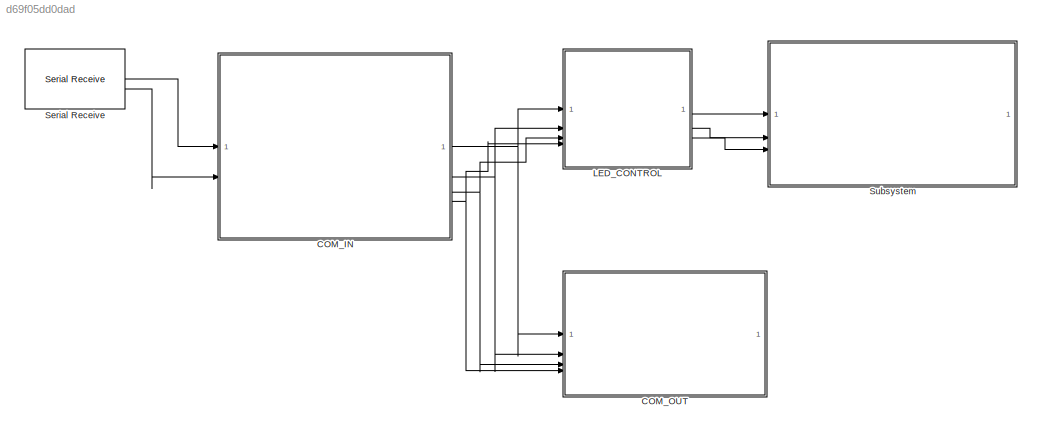
MODEL slx_d69f05dd0dad
KIND model
CONFIG AbsTol = auto
CONFIG EnableMultiTasking = on
CONFIG FixedStep = 1e-3
CONFIG MaxStep = auto
CONFIG MinStep = auto
CONFIG RelTol = 1e-3
CONFIG SampleTimeConstraint = Unconstrained
CONFIG SolverName = FixedStepAuto
CONFIG StartTime = 0.0
CONFIG StopTime = 10.0
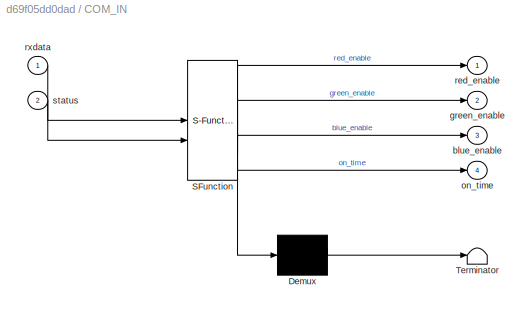
BLOCK [SubSystem] COM_IN
  ErrorFcn = Stateflow.Translate.translate
  PermitHierarchicalResolution = ExplicitOnly
  SFBlockType = Chart
  TreatAsAtomicUnit = on
BLOCK [Demux] COM_IN/ Demux 
  Outputs = 1
BLOCK [S-Function] COM_IN/ SFunction 
  EnableBusSupport = on
  FunctionName = sf_sfun
  PortCounts = [2 5]
  SFcnIsStateOwnerBlock = off
  SFunctionDeploymentMode = off
  Tag = Stateflow S-Function 3
BLOCK [Terminator] COM_IN/ Terminator 
BLOCK [Outport] COM_IN/blue_enable
  Port = 3
BLOCK [Outport] COM_IN/green_enable
  Port = 2
BLOCK [Outport] COM_IN/on_time
  Port = 4
BLOCK [Outport] COM_IN/red_enable
BLOCK [Inport] COM_IN/rxdata
BLOCK [Inport] COM_IN/status
  Port = 2
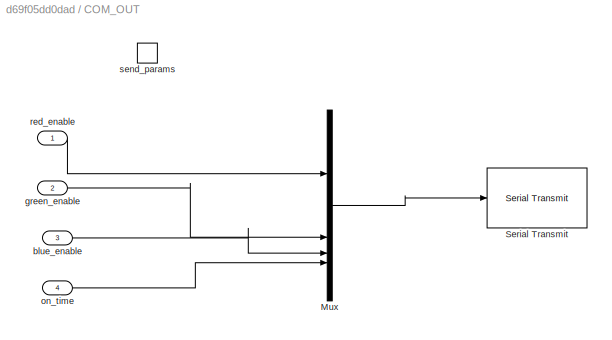
BLOCK [SubSystem] COM_OUT
  TreatAsAtomicUnit = on
BLOCK [Mux] COM_OUT/Mux
  DisplayOption = bar
BLOCK [Reference] COM_OUT/Serial Transmit  REF=frdmk64flib/Serial Transmit
  SourceBlock = frdmk64flib/Serial Transmit
  SourceType = freedomk64f.SCIWrite
BLOCK [Inport] COM_OUT/blue_enable
  Port = 3
BLOCK [Inport] COM_OUT/green_enable
  Port = 2
BLOCK [Inport] COM_OUT/on_time
  Port = 4
BLOCK [Inport] COM_OUT/red_enable
BLOCK [TriggerPort] COM_OUT/send_params
  FunctionName = send_params
  IsSimulinkFunction = on
  StatesWhenEnabling = held
  TriggerType = function-call
  VariantControl = (inherit)
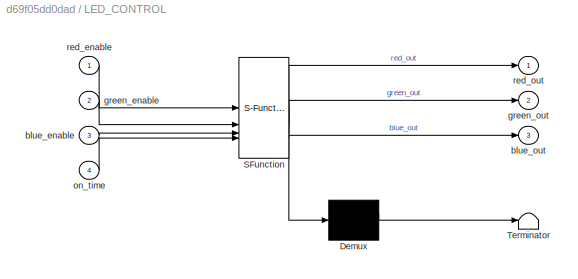
BLOCK [SubSystem] LED_CONTROL
  ErrorFcn = Stateflow.Translate.translate
  PermitHierarchicalResolution = ExplicitOnly
  SFBlockType = Chart
  TreatAsAtomicUnit = on
BLOCK [Demux] LED_CONTROL/ Demux 
  Outputs = 1
BLOCK [S-Function] LED_CONTROL/ SFunction 
  EnableBusSupport = on
  FunctionName = sf_sfun
  PortCounts = [4 4]
  SFcnIsStateOwnerBlock = off
  SFunctionDeploymentMode = off
  Tag = Stateflow S-Function 1
BLOCK [Terminator] LED_CONTROL/ Terminator 
BLOCK [Inport] LED_CONTROL/blue_enable
  Port = 3
BLOCK [Outport] LED_CONTROL/blue_out
  Port = 3
BLOCK [Inport] LED_CONTROL/green_enable
  Port = 2
BLOCK [Outport] LED_CONTROL/green_out
  Port = 2
BLOCK [Inport] LED_CONTROL/on_time
  Port = 4
BLOCK [Inport] LED_CONTROL/red_enable
BLOCK [Outport] LED_CONTROL/red_out
BLOCK [Reference] Serial Receive  REF=frdmk64flib/Serial Receive
  SourceBlock = frdmk64flib/Serial Receive
  SourceType = freedomk64f.SCIRead
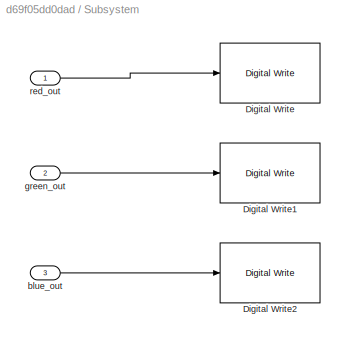
BLOCK [SubSystem] Subsystem
BLOCK [Reference] Subsystem/Digital Write  REF=frdmk64flib/Digital Write
  SourceBlock = frdmk64flib/Digital Write
  SourceType = freedomk64f.DigitalWrite
BLOCK [Reference] Subsystem/Digital Write1  REF=frdmk64flib/Digital Write
  SourceBlock = frdmk64flib/Digital Write
  SourceType = freedomk64f.DigitalWrite
BLOCK [Reference] Subsystem/Digital Write2  REF=frdmk64flib/Digital Write
  SourceBlock = frdmk64flib/Digital Write
  SourceType = freedomk64f.DigitalWrite
BLOCK [Inport] Subsystem/blue_out
  Port = 3
BLOCK [Inport] Subsystem/green_out
  Port = 2
BLOCK [Inport] Subsystem/red_out
NET COM_IN:1 -> COM_OUT:1, LED_CONTROL:1
NET COM_IN:2 -> COM_OUT:2, LED_CONTROL:2
NET COM_IN:3 -> COM_OUT:3, LED_CONTROL:3
NET COM_IN:4 -> COM_OUT:4, LED_CONTROL:4
LINE COM_OUT/Mux:1 -> COM_OUT/Serial Transmit:1
LINE COM_OUT/blue_enable:1 -> COM_OUT/Mux:3
LINE COM_OUT/green_enable:1 -> COM_OUT/Mux:2
LINE COM_OUT/on_time:1 -> COM_OUT/Mux:4
LINE COM_OUT/red_enable:1 -> COM_OUT/Mux:1
LINE LED_CONTROL:1 -> Subsystem:1
LINE LED_CONTROL:2 -> Subsystem:2
LINE LED_CONTROL:3 -> Subsystem:3
LINE Serial Receive:1 -> COM_IN:1
LINE Serial Receive:2 -> COM_IN:2
LINE Subsystem/blue_out:1 -> Subsystem/Digital Write2:1
LINE Subsystem/green_out:1 -> Subsystem/Digital Write1:1
LINE Subsystem/red_out:1 -> Subsystem/Digital Write:1
note: NET lines group one-source signal fan-out (src -> all destinations, sorted); 1:1 wires keep LINE
CHART LED_CONTROL states=4 transitions=12
  STATE_LABEL 'OFF\nentry:\nred_out = 0;\ngreen_out = 0;\nblue_out = 0;'
  STATE_LABEL 'RED_ON\nentry:\nred_out = 1;\ngreen_out = 0;\nblue_out = 0;'
  STATE_LABEL 'BLUE_ON\nentry:\nred_out = 0;\ngreen_out = 0;\nblue_out = 1;'
  STATE_LABEL 'GREEN_ON\nentry:\nred_out = 0;\ngreen_out = 1;\nblue_out = 0;'
CHART COM_IN states=4 transitions=9
  STATE_LABEL 'SET_PARAM\nentry:\nred_enable = rxdata(3);\ngreen_enable = rxdata(4);\nblue_enable = rxdata(5);\non_time = rxdata(6);'
  STATE_LABEL 'INITIAL\n%set initial parameters\nentry:\nred_enable = 0;\ngreen_enable = 0;\nblue_enable = 0;\non_time = 1; %seconds'
  STATE_LABEL 'STANDBY\n%wait for com'
  STATE_LABEL 'ECHO_PARAM\nentry:\nsend_params();'
CHART  states=0 transitions=0
CHART  states=0 transitions=0
